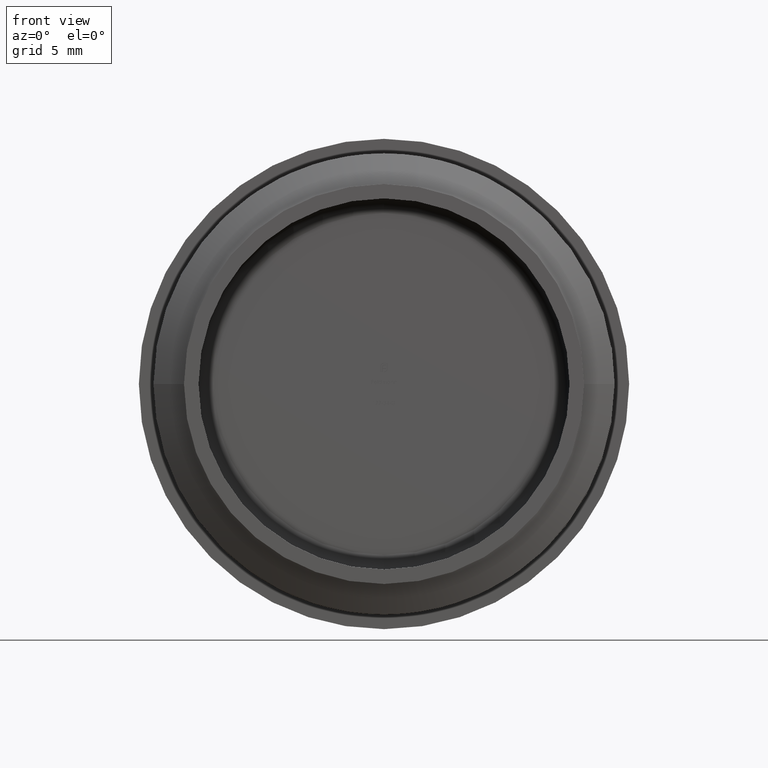
[diagram: clean part render]
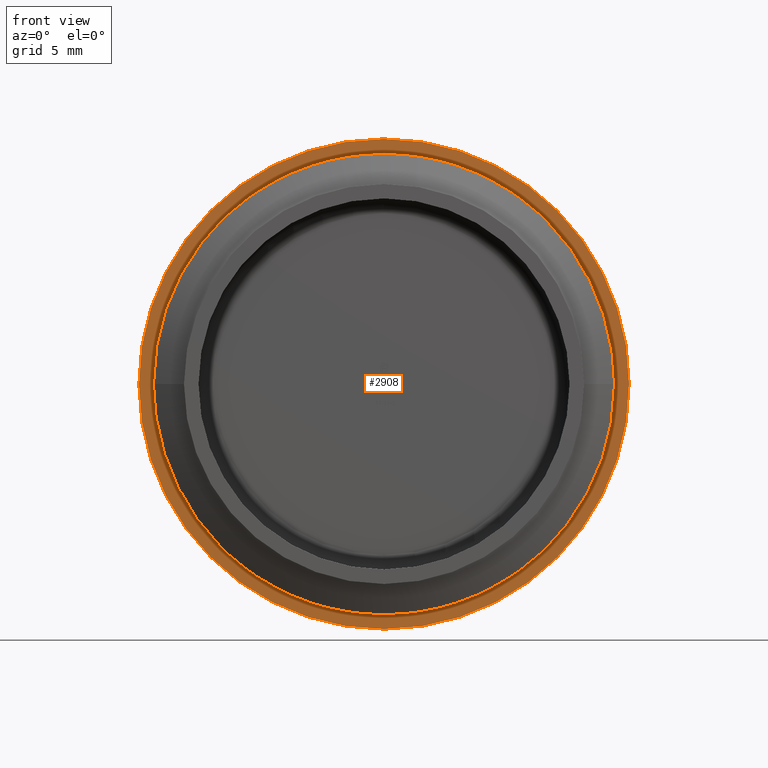
[diagram: same view with one face highlighted and labeled with its STEP entity id]
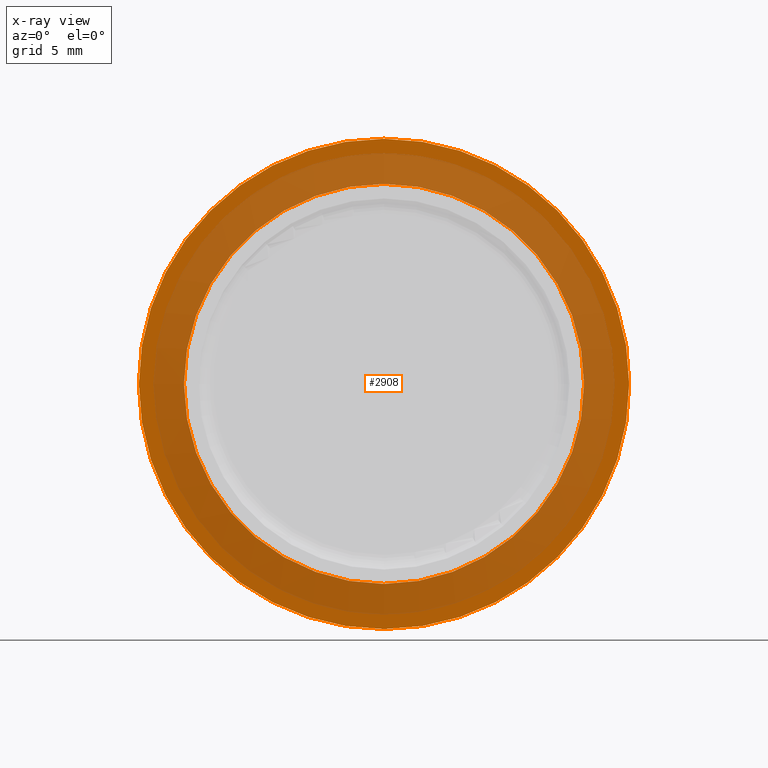
[diagram: x-ray of the same camera — body ghosted, the highlighted face saturated]
A machine part, front view. The second image highlights one B-rep face of the part: STEP entity #2908.
The next image is the same camera in x-ray: the body ghosted, the highlighted face saturated — about 66% of this face is hidden behind the body in this view.
In plain terms, the highlighted planar face has unit normal (0, -1, -0).
Its self-contained STEP definition (entity closure, byte-faithful):
#244 = AXIS2_PLACEMENT_3D ( 'NONE', #1645, #8336, #2539 ) ;
#245 = CARTESIAN_POINT ( 'NONE',  ( 1.683889348827610456E-15, 11.00000000000000178, 13.74999999999999822 ) ) ;
#413 = CIRCLE ( 'NONE', #244, 13.74999999999999822 ) ;
#537 = CIRCLE ( 'NONE', #8051, 13.74999999999999822 ) ;
#711 = DIRECTION ( 'NONE',  ( -0.000000000000000000, -1.000000000000000000, -0.000000000000000000 ) ) ;
#862 = PLANE ( 'NONE',  #10683 ) ;
#1430 = VERTEX_POINT ( 'NONE', #2691 ) ;
#1645 = CARTESIAN_POINT ( 'NONE',  ( 0.000000000000000000, 11.00000000000000178, 0.000000000000000000 ) ) ;
#1812 = DIRECTION ( 'NONE',  ( 0.000000000000000000, 0.000000000000000000, -1.000000000000000000 ) ) ;
#2100 = DIRECTION ( 'NONE',  ( 0.000000000000000000, 0.000000000000000000, -1.000000000000000000 ) ) ;
#2123 = ORIENTED_EDGE ( 'NONE', *, *, #7270, .F. ) ;
#2330 = EDGE_LOOP ( 'NONE', ( #7807, #7497 ) ) ;
#2485 = EDGE_LOOP ( 'NONE', ( #2123, #9758 ) ) ;
#2539 = DIRECTION ( 'NONE',  ( 0.000000000000000000, 0.000000000000000000, -1.000000000000000000 ) ) ;
#2640 = FACE_BOUND ( 'NONE', #2485, .T. ) ;
#2691 = CARTESIAN_POINT ( 'NONE',  ( 2.063529856563289455E-15, 11.00000000000000178, 16.84999999999999787 ) ) ;
#2836 = VERTEX_POINT ( 'NONE', #8220 ) ;
#2908 = ADVANCED_FACE ( 'NONE', ( #8101, #2640 ), #862, .T. ) ;
#3383 = VERTEX_POINT ( 'NONE', #245 ) ;
#3881 = CARTESIAN_POINT ( 'NONE',  ( 0.000000000000000000, 11.00000000000000178, 0.000000000000000000 ) ) ;
#4483 = DIRECTION ( 'NONE',  ( 0.000000000000000000, 0.000000000000000000, -1.000000000000000000 ) ) ;
#4770 = CARTESIAN_POINT ( 'NONE',  ( 16.84999999999999787, 11.00000000000000178, 0.000000000000000000 ) ) ;
#5362 = CARTESIAN_POINT ( 'NONE',  ( 0.000000000000000000, 11.00000000000000178, 0.000000000000000000 ) ) ;
#5481 = DIRECTION ( 'NONE',  ( -0.000000000000000000, -1.000000000000000000, -0.000000000000000000 ) ) ;
#6357 = EDGE_CURVE ( 'NONE', #2836, #1430, #8932, .T. ) ;
#6457 = VERTEX_POINT ( 'NONE', #9186 ) ;
#6950 = AXIS2_PLACEMENT_3D ( 'NONE', #10243, #711, #4483 ) ;
#7270 = EDGE_CURVE ( 'NONE', #6457, #3383, #537, .T. ) ;
#7497 = ORIENTED_EDGE ( 'NONE', *, *, #9258, .T. ) ;
#7589 = DIRECTION ( 'NONE',  ( 0.000000000000000000, -1.000000000000000000, -0.000000000000000000 ) ) ;
#7807 = ORIENTED_EDGE ( 'NONE', *, *, #6357, .T. ) ;
#8051 = AXIS2_PLACEMENT_3D ( 'NONE', #3881, #11645, #2100 ) ;
#8101 = FACE_OUTER_BOUND ( 'NONE', #2330, .T. ) ;
#8220 = CARTESIAN_POINT ( 'NONE',  ( 0.000000000000000000, 11.00000000000000178, -16.84999999999999787 ) ) ;
#8336 = DIRECTION ( 'NONE',  ( -0.000000000000000000, -1.000000000000000000, -0.000000000000000000 ) ) ;
#8412 = DIRECTION ( 'NONE',  ( 0.000000000000000000, 0.000000000000000000, -1.000000000000000000 ) ) ;
#8761 = AXIS2_PLACEMENT_3D ( 'NONE', #5362, #5481, #8412 ) ;
#8932 = CIRCLE ( 'NONE', #8761, 16.84999999999999787 ) ;
#9186 = CARTESIAN_POINT ( 'NONE',  ( 0.000000000000000000, 11.00000000000000178, -13.74999999999999822 ) ) ;
#9258 = EDGE_CURVE ( 'NONE', #1430, #2836, #11586, .T. ) ;
#9758 = ORIENTED_EDGE ( 'NONE', *, *, #11112, .F. ) ;
#10243 = CARTESIAN_POINT ( 'NONE',  ( 0.000000000000000000, 11.00000000000000178, 0.000000000000000000 ) ) ;
#10683 = AXIS2_PLACEMENT_3D ( 'NONE', #4770, #7589, #1812 ) ;
#11112 = EDGE_CURVE ( 'NONE', #3383, #6457, #413, .T. ) ;
#11586 = CIRCLE ( 'NONE', #6950, 16.84999999999999787 ) ;
#11645 = DIRECTION ( 'NONE',  ( -0.000000000000000000, -1.000000000000000000, -0.000000000000000000 ) ) ;